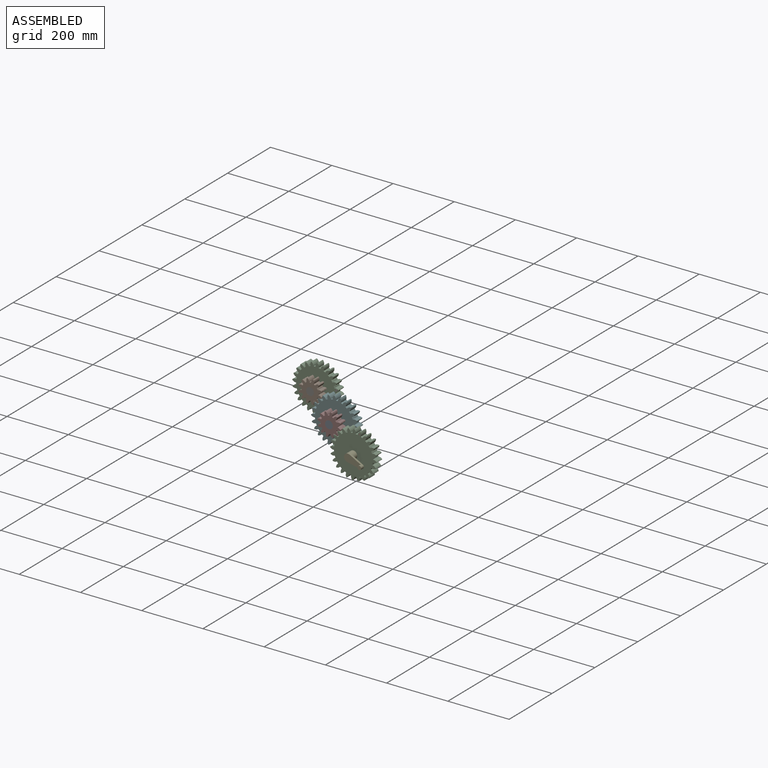
[diagram: assembled view]
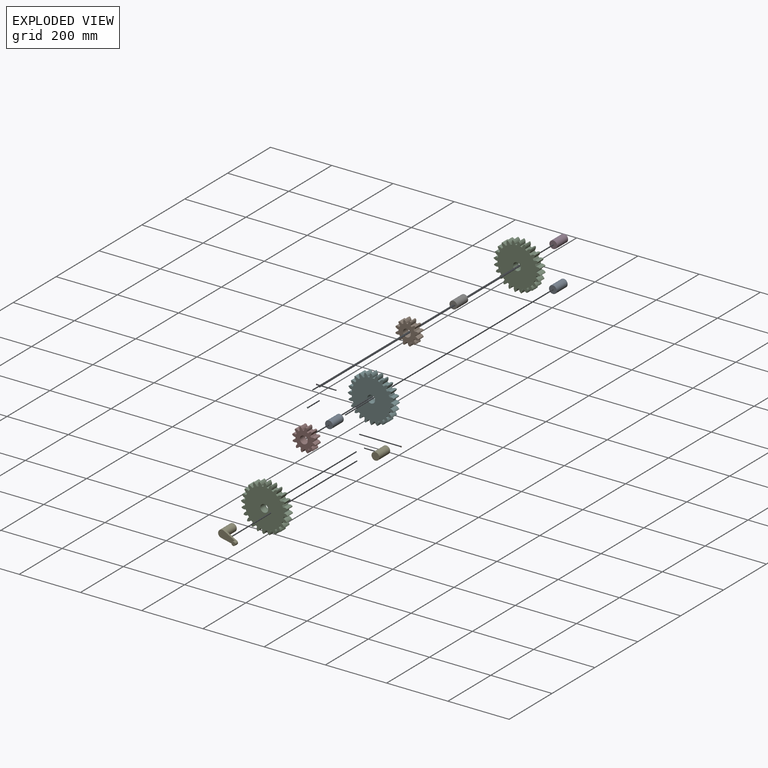
[diagram: exploded view]
GUIDED TOUR — MATED ASSEMBLY (Onshape document 5852dc61b3cb8a1095e82091, AutoMate assembly 5852dc61b3cb8a1095e82091_e9d67620ee6da6985da7c94a_ef0d8115f055d3bfe5b601b6_default)

This assembly has 14 components, labeled P0..P13 below (a component is one placed occurrence of a part; the same part can appear more than once), held together by 11 mates. A mate is a constraint between two components; its type names the relative motion it leaves free:
  FASTENED — locks the two components together rigidly (no relative motion),
  REVOLUTE — leaves rotation about the listed axis free (a hinge).
Axis/direction vectors are unit vectors and 'through' points are millimeter coordinates, both in the assembly's world frame.

MATES
  1. FASTENED "Fastened 2": P5 <-> P7, direction (0.000, -1.000, 0.000) through (-79.67, 12.67, 66.97) mm
  2. REVOLUTE "Revolute 2": P0 <-> P7, axis (0.000, -1.000, 0.000) through (-79.67, -12.73, 66.97) mm
  3. REVOLUTE "Revolute 1": P12 <-> P4, axis (0.000, -1.000, 0.000) through (0.00, 12.70, 0.00) mm
  4. FASTENED "Fastened 8": P1 <-> P2, direction (0.000, 1.000, 0.000) through (20.19, -12.95, 65.74) mm
  5. FASTENED "Fastened 1": P4 <-> P2, direction (0.000, 1.000, 0.000) through (0.00, 12.70, 0.00) mm
  6. FASTENED "Fastened 5": P8 <-> P0, direction (0.000, -1.000, 0.000) through (-79.67, 38.07, 66.97) mm
  7. FASTENED "Fastened 7": P13 <-> P5, direction (0.000, 1.000, 0.000) through (-128.79, 12.42, 115.37) mm
  8. FASTENED "Fastened 4": P10 <-> P9, direction (0.000, -1.000, 0.000) through (-159.30, 38.02, 134.01) mm
  9. FASTENED "Fastened 6": P11 <-> P10, direction (0.000, 1.000, 0.000) through (-91.48, 37.77, 146.50) mm
  10. REVOLUTE "Revolute 3": P6 <-> P3, axis (0.000, 1.000, 0.000) through (-159.30, 63.42, 134.01) mm
  11. FASTENED "Fastened 3": P6 <-> P9, direction (0.000, -1.000, 0.000) through (-159.30, 12.62, 134.01) mm

ASSEMBLY ORDER
  1. P0 — the base component [order heuristic]
  2. P2 — core [order heuristic]
  3. P6 — core [order heuristic]
  4. P5 [order verified]
  5. P10 [order verified]
  6. P7 — core [order heuristic]
  7. P4 [order verified]
  8. P11 [order verified]
  9. P13 [order verified]
  10. P1 [order verified]
  11. P12 [order verified]
  12. P9 — core [order heuristic]
  13. P8 [order verified]
  14. P3 [order verified]
Order-tag legend:
  [order verified] — this step's position reverses a verified removal order: the component was checked to insert without passing through the ones already placed.
  [order heuristic] — the first 5 components form the assembly's core: parts whose collision-free extraction could not be verified, listed in mate-graph order.

Of the 14 components, 14 carry the full construction recipe — the FeatureScript program that regenerates the part's solid from scratch; the rest are supplied as boundary geometry only.
Because this assembly has more than 12 components, the tour below covers the 12 most significant ones individually (every recipe-attached component first, then the largest by part volume), in assembly order; the remaining 2 are summarized together in a grouped section at the end.
Each toured component is shown spotlighted twice — in the assembled view, then in the exploded view, where a leader line traces a displaced component back to its assembled socket (saturated green if recipe-attached, orange if geometry-only; every other component desaturated gray) — followed by its recipe or geometry summary and the mates that hold it.
NOTE — document 2 of 2 of this assembly tour. The two overview renders and the header above are repeated from document 1; the component sections below continue where the previous document stopped.
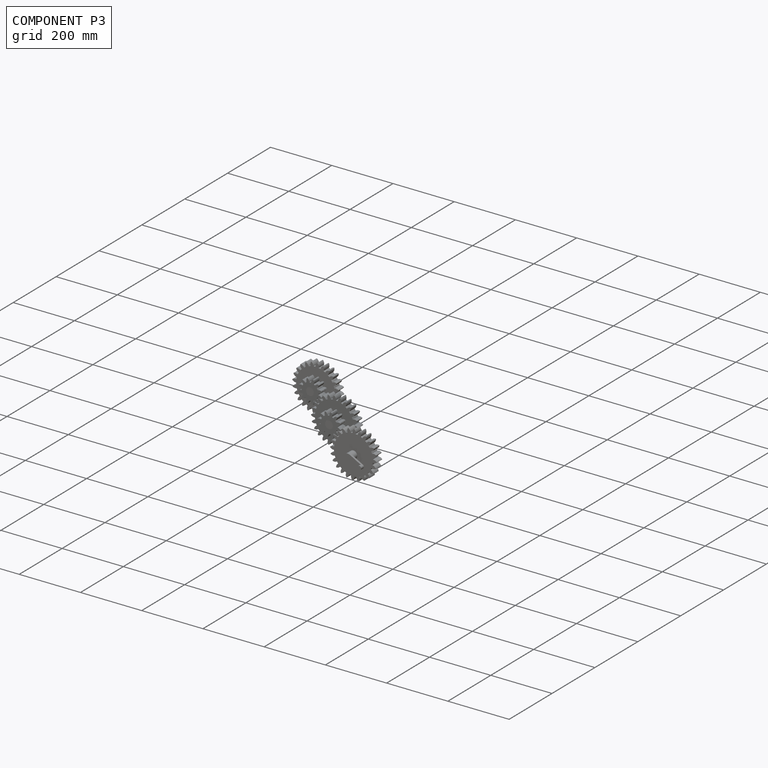
[diagram: component P3 — assembled]
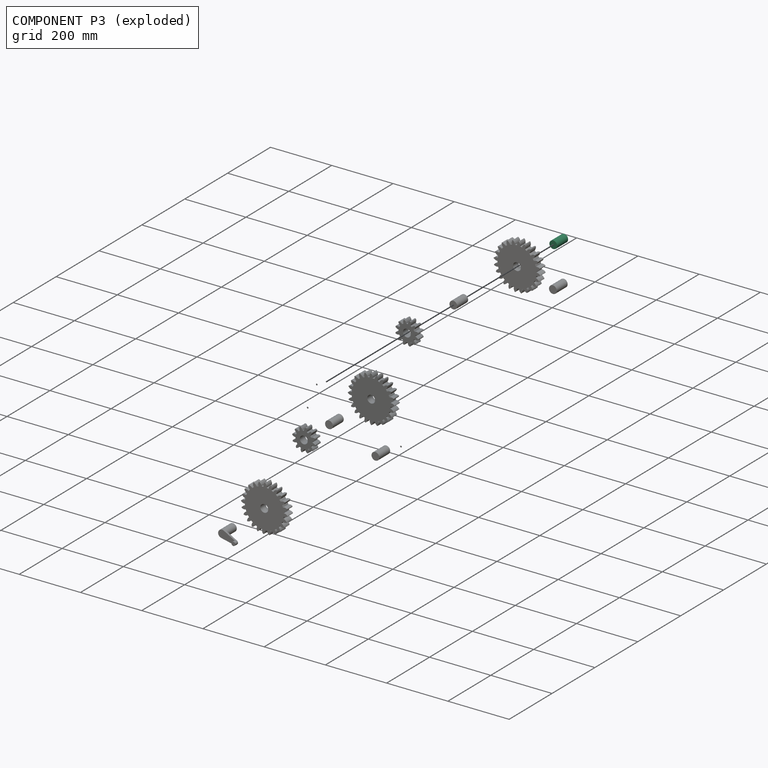
[diagram: component P3 — exploded]
COMPONENT P3 — same part as P0 (CADFS 00387538); its construction recipe is shown at P0.
Held by: REVOLUTE mate "Revolute 3" to P6.
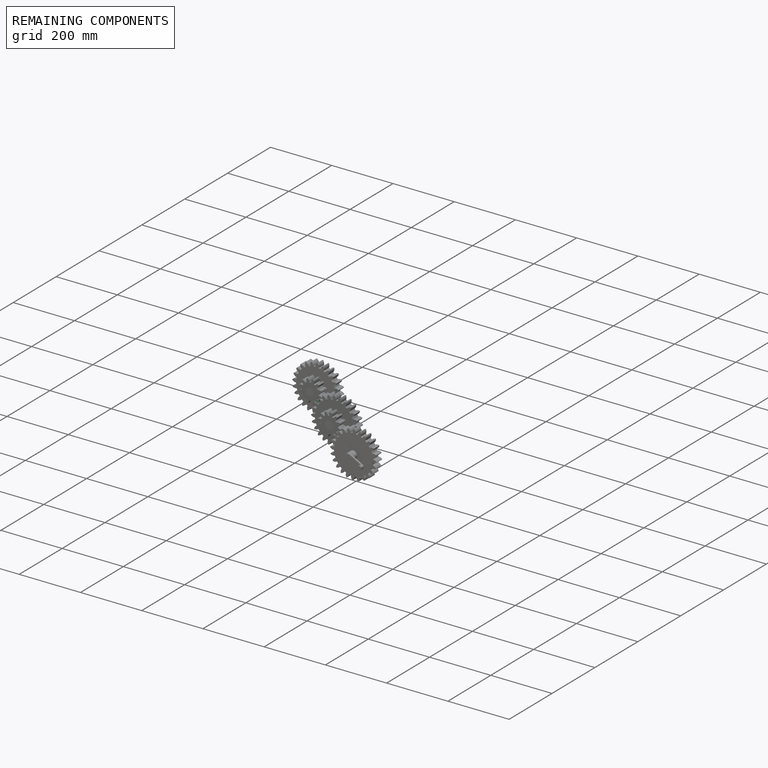
[diagram: remaining components — assembled]
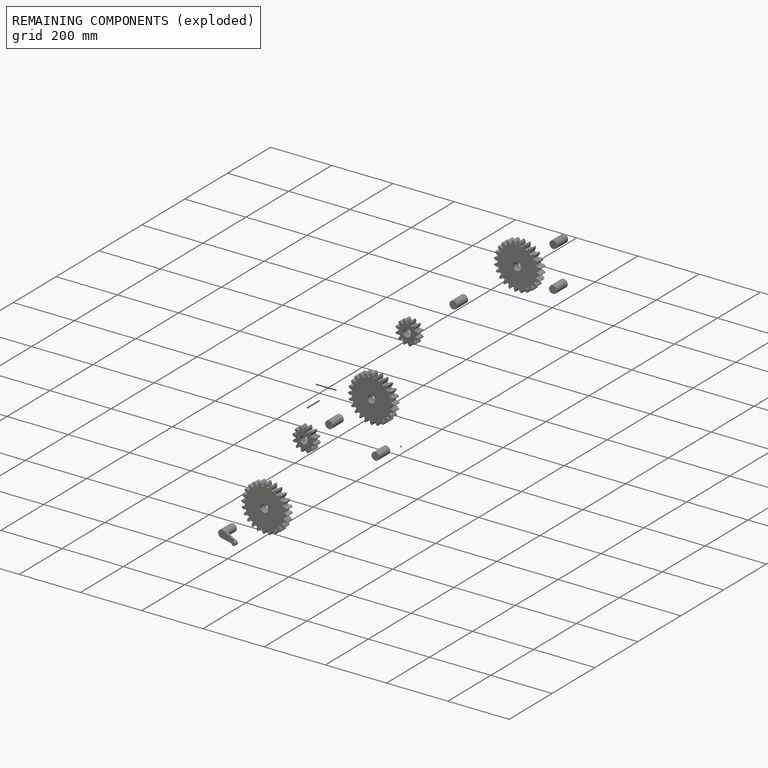
[diagram: remaining components — exploded]
REMAINING COMPONENTS (grouped) — the 2 components below fall outside the per-component tour by the significance rule stated above; both spotlight views highlight the whole group.
  P11: bounding box 5.1 x 5.1 x 0.3 mm, volume 5 mm^3. Recipe-attached (CADFS 00387540; recipe not printed under the significance rule). Held by: FASTENED mate "Fastened 6" to P10.
  P13: bounding box 5.1 x 5.1 x 0.3 mm, volume 5 mm^3. Recipe-attached (CADFS 00387540; recipe not printed under the significance rule). Held by: FASTENED mate "Fastened 7" to P5.
PROVENANCE & LICENSES
Assembly (occurrences, transforms, mates, per-part STEP geometry): AutoMate dataset, Zenodo record 7776208, CC0.
Construction recipes: CADFS (HuggingFace VladPyatov/CADFS, CC-BY-4.0, layered over the ABC dataset), FeatureScript reconstruction programs keyed by ABC model id.
Join: ABC meta listings map ABC model id -> Onshape documentId; within a shared document, parts are matched by geometric signature (bounding-box dims + volume at 0.1% relative tolerance, exact B-rep face/solid counts).
Verification: 14 of this assembly's 14 components carry a recipe attachment, and every attachment is mesh-verified: the CADFS STEP and the AutoMate member STEP were compared as meshes in their shared local frame (symmetric sampled-point-to-mesh distance); worst across the 14 attachments: below the mesh-comparison resolution (tessellation chordal tolerance ~0.325 mm) on a 217 mm part.
Renders: orthographic iso camera (az 35 / el 25); the floor grid conveys scale (grid pitch printed in each image; no ruler). In the exploded view each component is displaced by its stored offset vector: the offsets alone carry the explosion direction (mate normal/axis signs are not orientation cues and do not encode it), and separation distances are assigned per mate-chain, not proportionally to assembly-order depth.
